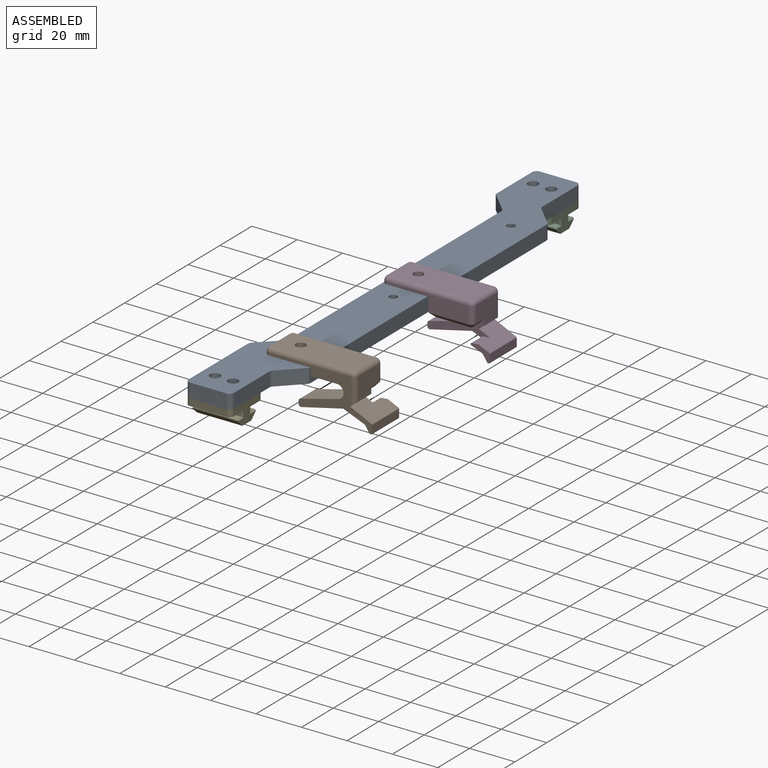
[diagram: assembled view]
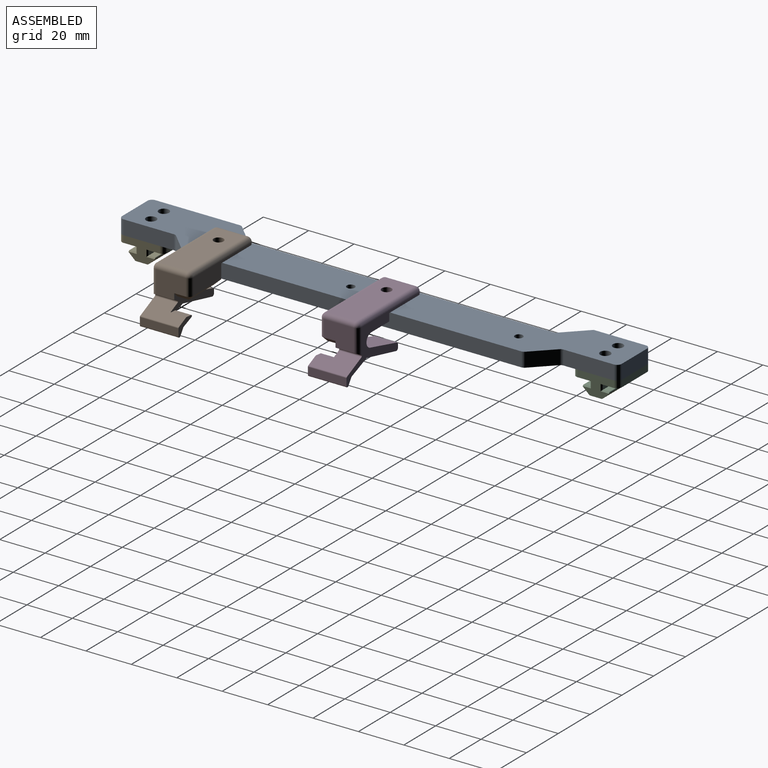
[diagram: assembled view, second angle]
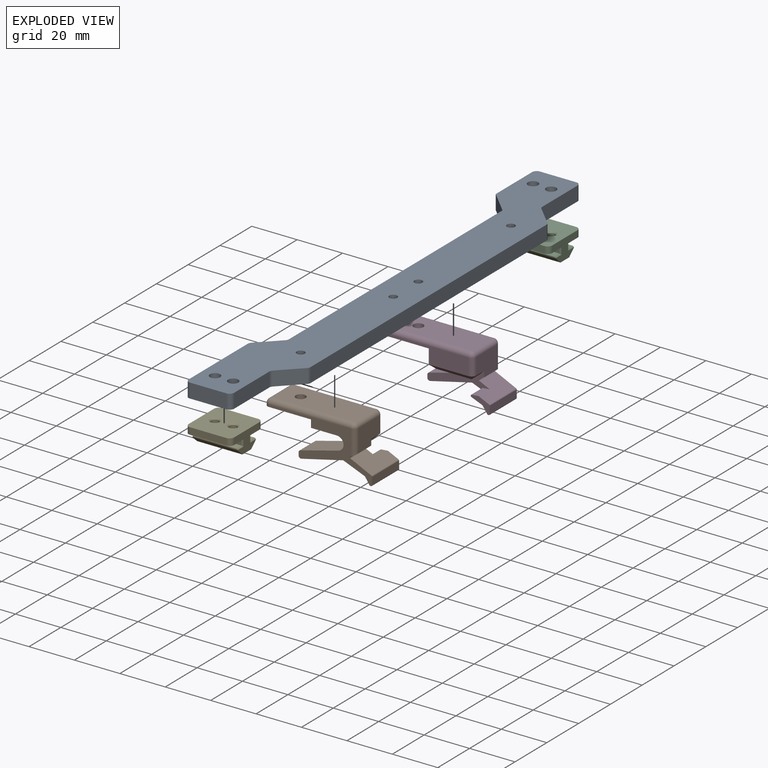
[diagram: exploded view]
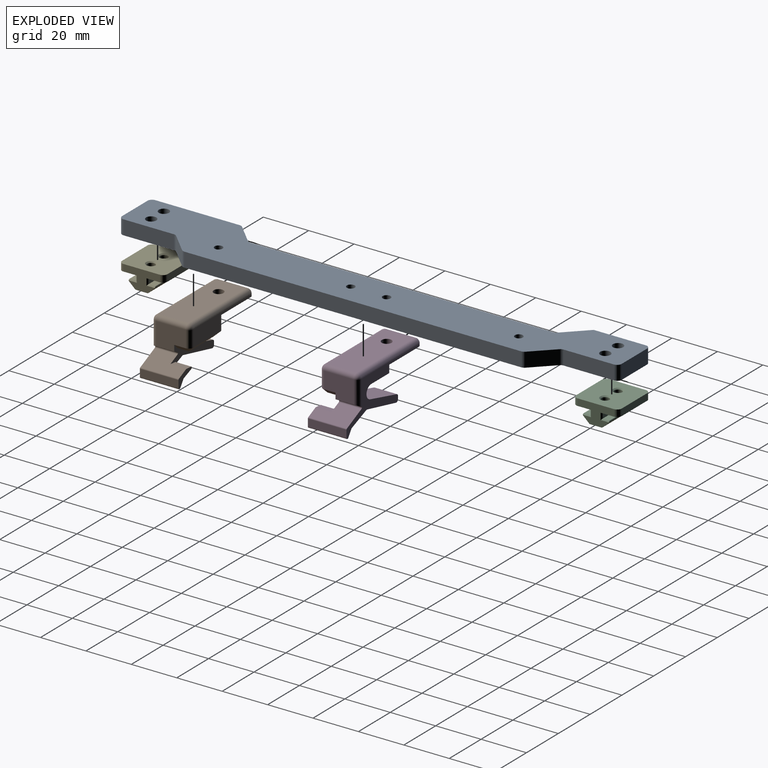
[diagram: exploded view, second angle]
ASSEMBLY  parts=5 mates=4
PART A: 32 faces, bbox 30x220x6.4 mm
  f0: plane 22.9x6.35mm, normal (-1,0,0), area 145.4mm2, adj f8,f9,f20,f31
  f1: plane 16x6.35mm, normal (0,-1,0), area 101.6mm2, adj f8,f9,f16,f17
  f2: plane 22.17x6.35mm, normal (1,0,0), area 140.8mm2, adj f8,f9,f16,f21
  f3: plane 148.34x6.35mm, normal (1,0,0), area 942mm2, adj f8,f9,f13,f14
  f4: plane 22.17x6.35mm, normal (1,0,0), area 140.8mm2, adj f8,f9,f18,f19
  f5: plane 16x6.35mm, normal (0,1,0), area 101.6mm2, adj f8,f9,f19,f20
  f6: plane 134.27x6.35mm, normal (-1,0,0), area 852.6mm2, adj f8,f9,f15,f31
  f7: plane 37.17x6.35mm, normal (-1,0,0), area 236mm2, adj f8,f9,f17,f22
  f8: plane 220x30mm, normal (0,0,1), area 4443.5mm2, adj f0,f1,f2,f3,f4,f5,f6,f7
  f9: plane 220x30mm, normal (0,0,-1), area 4443.5mm2, adj f0,f1,f2,f3,f4,f5,f6,f7
  f10: plane 8.83x8.83mm, normal (-0.71,0.71,0), area 79.3mm2, adj f8,f9,f15,f22
  f11: plane 8.83x8.83mm, normal (0.71,-0.71,0), area 79.3mm2, adj f8,f9,f13,f21
  f12: plane 8.83x8.83mm, normal (0.71,0.71,0), area 79.3mm2, adj f8,f9,f14,f18
  f13: cylinder r=2mm len=6.35mm, axis (0,0,1), area 10mm2, adj f3,f8,f9,f11
  f14: cylinder r=2mm len=6.35mm, axis (0,0,1), area 10mm2, adj f3,f8,f9,f12
  f15: cylinder r=2mm len=6.35mm, axis (0,0,1), area 10mm2, adj f6,f8,f9,f10
  f16: cylinder r=2mm len=6.35mm, axis (0,0,1), area 19.9mm2, adj f1,f2,f8,f9
  f17: cylinder r=2mm len=6.35mm, axis (0,0,-1), area 19.9mm2, adj f1,f7,f8,f9
  f18: cylinder r=2mm len=6.35mm, axis (0,0,1), area 10mm2, adj f4,f8,f9,f12
  f19: cylinder r=2mm len=6.35mm, axis (0,0,-1), area 19.9mm2, adj f4,f5,f8,f9
  f20: cylinder r=2mm len=6.35mm, axis (0,0,1), area 19.9mm2, adj f0,f5,f8,f9
  f21: cylinder r=2mm len=6.35mm, axis (0,0,-1), area 10mm2, adj f2,f8,f9,f11
  f22: cylinder r=2mm len=6.35mm, axis (0,0,1), area 10mm2, adj f7,f8,f9,f10
  f23: cylinder r=2.25mm len=6.35mm, axis (0,0,1), area 89.8mm2, adj f8,f9
  f24: cylinder r=2.25mm len=6.35mm, axis (0,0,1), area 89.8mm2, adj f8,f9
  f25: cylinder r=2.25mm len=6.35mm, axis (0,0,1), area 89.8mm2, adj f8,f9
  f26: cylinder r=2.25mm len=6.35mm, axis (0,0,1), area 89.8mm2, adj f8,f9
  f27: cylinder r=1.75mm len=6.35mm, axis (0,0,1), area 69.8mm2, adj f8,f9
  f28: cylinder r=1.75mm len=6.35mm, axis (0,0,1), area 69.8mm2, adj f8,f9
  f29: cylinder r=1.75mm len=6.35mm, axis (0,0,1), area 69.8mm2, adj f8,f9
  f30: cylinder r=1.75mm len=6.35mm, axis (0,0,1), area 69.8mm2, adj f8,f9
  f31: plane 10x10mm, normal (-0.71,-0.71,0), area 89.8mm2, adj f0,f6,f8,f9
PART B: 50 faces, bbox 47.4x17x22.5 mm
  f0: cylinder r=3mm len=10mm, axis (0,-1,0), area 37mm2, adj f1,f2,f8,f14,f49
  f1: cylinder r=3mm len=7.97mm, axis (0,1,0), area 28.5mm2, adj f0,f9,f14,f49
  f2: plane 27.5x10.44mm, normal (0,-1,0), area 96.4mm2, adj f0,f3,f4,f5,f6,f7,f8,f30
  f3: plane 15.5x5mm, normal (0,0,-1), area 77.5mm2, adj f2,f45,f46,f48,f49
  f4: plane 13x10mm, normal (-1,0,0), area 116.8mm2, adj f2,f5,f16,f20,f43,f45
  f5: plane 10x2.02mm, normal (-0.47,0,-0.88), area 21.9mm2, adj f2,f4,f14,f16,f37
  f6: plane 18.32x10mm, normal (-0.23,0,-0.97), area 188mm2, adj f2,f14,f36,f41
  f7: plane 10x1.26mm, normal (1,0,0), area 12.6mm2, adj f2,f14,f41,f42
  f8: plane 16.82x10mm, normal (0.25,0,0.97), area 173.8mm2, adj f0,f2,f14,f42
  f9: plane 11.31x5mm, normal (0,0,-1), area 56.6mm2, adj f1,f10,f14,f49
  f10: plane 17x6.35mm, normal (1,0,0), area 88.5mm2, adj f9,f11,f14,f15,f46,f49
  f11: plane 20.5x17mm, normal (0,0,-1), area 332.3mm2, adj f10,f12,f14,f15,f18,f25,f26
  f12: plane 13x1mm, normal (1,0,0), area 13mm2, adj f11,f18,f22,f25
  f13: plane 36x13mm, normal (0,0,1), area 453.5mm2, adj f19,f20,f22,f23,f26
  f14: plane 45.37x20.48mm, normal (0,1,0), area 226.8mm2, adj f0,f1,f5,f6,f7,f8,f9,f10
  f15: plane 36x7.35mm, normal (0,-1,0), area 147.1mm2, adj f10,f11,f23,f25,f43,f48
  f16: cylinder r=2mm len=11.07mm, axis (0,0,-1), area 32.6mm2, adj f4,f5,f14,f17
  f17: sphere r=2mm, area 6.3mm2, adj f16,f19,f20
  f18: cylinder r=2mm len=2mm, axis (0,0,1), area 3.1mm2, adj f11,f12,f14,f21
  f19: cylinder r=2mm len=36mm, axis (-1,0,0), area 113.1mm2, adj f13,f14,f17,f21
  f20: cylinder r=2mm len=13mm, axis (0,1,0), area 40.8mm2, adj f4,f13,f17,f44
  f21: sphere r=2mm, area 6.3mm2, adj f18,f19,f22
  f22: cylinder r=2mm len=13mm, axis (0,-1,0), area 40.8mm2, adj f12,f13,f21,f24
  f23: cylinder r=2mm len=36mm, axis (-1,0,0), area 113.1mm2, adj f13,f15,f24,f44
  f24: sphere r=2mm, area 6.3mm2, adj f22,f23,f25
  f25: cylinder r=2mm len=2mm, axis (0,0,1), area 3.1mm2, adj f11,f12,f15,f24
  f26: cylinder r=2.15mm len=4.3mm, axis (0,0,1), area 40.5mm2, adj f11,f13
  f27: plane 17x3.29mm, normal (-1,0,0), area 55.9mm2, adj f14,f32,f33,f38
  f28: plane 17x0.23mm, normal (0,0,-1), area 4mm2, adj f14,f33,f34,f38
  f29: plane 17x2.84mm, normal (0.83,0,-0.56), area 58.4mm2, adj f14,f34,f35,f38
  f30: plane 17x9.08mm, normal (-0.43,0,0.9), area 135.8mm2, adj f2,f14,f32,f37,f38,f39
  f31: plane 17x9.23mm, normal (0.37,0,-0.93), area 135.5mm2, adj f2,f14,f35,f36,f38,f40
  f32: cylinder r=0.5mm len=17mm, axis (0,1,0), area 9.6mm2, adj f14,f27,f30,f38
  f33: cylinder r=0.5mm len=17mm, axis (0,1,0), area 13.4mm2, adj f14,f27,f28,f38
  f34: cylinder r=0.5mm len=17mm, axis (0,1,0), area 8.3mm2, adj f14,f28,f29,f38
  f35: cylinder r=0.5mm len=17mm, axis (0,-1,0), area 5.1mm2, adj f14,f29,f31,f38
  f36: cylinder r=0.5mm len=10mm, axis (0,-1,0), area 3.1mm2, adj f2,f6,f14,f31
  f37: cylinder r=0.5mm len=10mm, axis (0,-1,0), area 11.1mm2, adj f2,f5,f14,f30
  f38: plane 8.39x6.39mm, normal (0,-1,0), area 21.8mm2, adj f27,f28,f29,f30,f31,f32,f33,f34
  f39: plane 7x3.07mm, normal (0.09,0,1), area 21.6mm2, adj f2,f30,f38,f40
  f40: cylinder r=0.5mm len=7mm, axis (0,1,0), area 9.4mm2, adj f2,f31,f38,f39
  f41: cylinder r=1mm len=10mm, axis (0,1,0), area 18mm2, adj f2,f6,f7,f14
  f42: cylinder r=1mm len=10mm, axis (0,1,0), area 13.2mm2, adj f2,f7,f8,f14
  f43: cylinder r=2mm len=7.35mm, axis (0,0,1), area 23.1mm2, adj f4,f15,f44,f47
  f44: sphere r=2mm, area 6.3mm2, adj f20,f23,f43
  f45: plane 5x2mm, normal (-0.71,0,-0.71), area 14.1mm2, adj f2,f3,f4,f47
  f46: plane 9x2mm, normal (0.71,0,-0.71), area 19.8mm2, adj f3,f10,f48,f49
  f47: cone r=2mm half-angle=45deg, axis (0,0,1), area 4.4mm2, adj f43,f45,f48
  f48: plane 17.5x2mm, normal (0,-0.71,-0.71), area 46.7mm2, adj f3,f15,f46,f47
  f49: plane 14.31x5mm, normal (0,0.71,-0.71), area 94.9mm2, adj f0,f1,f3,f9,f10,f46
PART C: 38 faces, bbox 20x20x8.8 mm
  f0: plane 20x7.85mm, normal (0,0,-1), area 145.5mm2, adj f1,f13,f14,f15,f24,f26,f28,f31
  f1: plane 19x2.4mm, normal (0,-1,0), area 45.6mm2, adj f0,f2,f28,f31
  f2: plane 19x2.9mm, normal (0,0,1), area 55.1mm2, adj f1,f16,f35,f36
  f3: plane 20x0.31mm, normal (0,-1,0), area 6.2mm2, adj f14,f15,f16,f17,f35,f36
  f4: plane 20x2.88mm, normal (0,-0.68,-0.73), area 78.8mm2, adj f14,f15,f17,f18
  f5: plane 20x5.34mm, normal (0,0,-1), area 87.6mm2, adj f14,f15,f18,f19,f22,f23
  f6: plane 20x2.88mm, normal (0,0.68,-0.73), area 78.8mm2, adj f14,f15,f19,f20
  f7: plane 20x0.31mm, normal (0,1,0), area 6.2mm2, adj f14,f15,f20,f21,f34,f37
  f8: plane 19x2.9mm, normal (0,0,1), area 55.1mm2, adj f9,f21,f34,f37
  f9: plane 19x2.4mm, normal (0,1,0), area 45.6mm2, adj f8,f10,f29,f30
  f10: plane 20x7.85mm, normal (0,0,-1), area 145.5mm2, adj f9,f11,f14,f15,f25,f27,f29,f30
  f11: plane 16x3mm, normal (0,1,0), area 48mm2, adj f10,f12,f25,f27
  f12: plane 20x20mm, normal (0,0,1), area 364.8mm2, adj f11,f13,f14,f15,f24,f25,f26,f27
  f13: plane 16x3mm, normal (0,-1,0), area 48mm2, adj f0,f12,f24,f26
  f14: plane 16x8.8mm, normal (1,0,0), area 85.4mm2, adj f0,f3,f4,f5,f6,f7,f10,f12
  f15: plane 16x8.8mm, normal (-1,0,0), area 85.4mm2, adj f0,f3,f4,f5,f6,f7,f10,f12
  f16: cylinder r=0.2mm len=19.4mm, axis (-1,0,0), area 6mm2, adj f2,f3,f35,f36
  f17: cylinder r=0.2mm len=20mm, axis (-1,0,0), area 3.3mm2, adj f3,f4,f14,f15
  f18: cylinder r=0.2mm len=20mm, axis (-1,0,0), area 3mm2, adj f4,f5,f14,f15
  f19: cylinder r=0.2mm len=20mm, axis (-1,0,0), area 3mm2, adj f5,f6,f14,f15
  f20: cylinder r=0.2mm len=20mm, axis (-1,0,0), area 3.3mm2, adj f6,f7,f14,f15
  f21: cylinder r=0.2mm len=19.4mm, axis (-1,0,0), area 6mm2, adj f7,f8,f34,f37
  f22: cylinder r=1.75mm len=8.3mm, axis (0,0,1), area 91.3mm2, adj f5,f33
  f23: cylinder r=1.75mm len=8.3mm, axis (0,0,1), area 91.3mm2, adj f5,f32
  f24: cylinder r=2mm len=3mm, axis (0,0,-1), area 9.4mm2, adj f0,f12,f13,f15
  f25: cylinder r=2mm len=3mm, axis (0,0,1), area 9.4mm2, adj f10,f11,f12,f15
  f26: cylinder r=2mm len=3mm, axis (0,0,1), area 9.4mm2, adj f0,f12,f13,f14
  f27: cylinder r=2mm len=3mm, axis (0,0,-1), area 9.4mm2, adj f10,f11,f12,f14
  f28: plane 2.9x0.5mm, normal (-0.71,-0.71,0), area 1.9mm2, adj f0,f1,f15,f35
  f29: plane 2.9x0.5mm, normal (-0.71,0.71,0), area 1.9mm2, adj f9,f10,f15,f34
  f30: plane 2.9x0.5mm, normal (0.71,0.71,0), area 1.9mm2, adj f9,f10,f14,f37
  f31: plane 2.9x0.5mm, normal (0.71,-0.71,0), area 1.9mm2, adj f0,f1,f14,f36
  f32: cone r=1.75mm half-angle=45deg, axis (0,0,1), area 8.9mm2, adj f12,f23
  f33: cone r=1.75mm half-angle=45deg, axis (0,0,1), area 8.9mm2, adj f12,f22
  f34: plane 3.6x0.5mm, normal (-0.71,0,0.71), area 2.4mm2, adj f7,f8,f15,f21,f29
  f35: plane 3.6x0.5mm, normal (-0.71,0,0.71), area 2.4mm2, adj f2,f3,f15,f16,f28
  f36: plane 3.6x0.5mm, normal (0.71,0,0.71), area 2.4mm2, adj f2,f3,f14,f16,f31
  f37: plane 3.6x0.5mm, normal (0.71,0,0.71), area 2.4mm2, adj f7,f8,f14,f21,f30
PART D: 50 faces, bbox 47.4x17x22.5 mm
  f0: cylinder r=3mm len=7.97mm, axis (0,-1,0), area 28.5mm2, adj f1,f9,f14,f49
  f1: cylinder r=3mm len=10mm, axis (0,1,0), area 37mm2, adj f0,f2,f8,f14,f49
  f2: plane 27.5x10.44mm, normal (0,1,0), area 96.4mm2, adj f1,f3,f4,f5,f6,f7,f8,f30
  f3: plane 15.5x5mm, normal (0,0,-1), area 77.5mm2, adj f2,f45,f46,f48,f49
  f4: plane 13x10mm, normal (-1,0,0), area 116.7mm2, adj f2,f5,f16,f20,f43,f45
  f5: plane 10x2.02mm, normal (-0.47,0,-0.88), area 21.9mm2, adj f2,f4,f14,f16,f37
  f6: plane 18.32x10mm, normal (-0.23,0,-0.97), area 188mm2, adj f2,f14,f36,f41
  f7: plane 10x1.26mm, normal (1,0,0), area 12.6mm2, adj f2,f14,f41,f42
  f8: plane 16.82x10mm, normal (0.25,0,0.97), area 173.8mm2, adj f1,f2,f14,f42
  f9: plane 11.31x5mm, normal (0,0,-1), area 56.6mm2, adj f0,f10,f14,f49
  f10: plane 17x6.35mm, normal (1,0,0), area 88.4mm2, adj f9,f11,f14,f15,f46,f49
  f11: plane 20.5x17mm, normal (0,0,-1), area 332.3mm2, adj f10,f12,f14,f15,f18,f25,f26
  f12: plane 13x1mm, normal (1,0,0), area 13mm2, adj f11,f18,f22,f25
  f13: plane 36x13mm, normal (0,0,1), area 453.5mm2, adj f19,f20,f22,f23,f26
  f14: plane 45.37x20.48mm, normal (0,-1,0), area 226.8mm2, adj f0,f1,f5,f6,f7,f8,f9,f10
  f15: plane 36x7.35mm, normal (0,1,0), area 147.1mm2, adj f10,f11,f23,f25,f43,f48
  f16: cylinder r=2mm len=11.07mm, axis (0,0,-1), area 32.6mm2, adj f4,f5,f14,f17
  f17: sphere r=2mm, area 6.3mm2, adj f16,f19,f20
  f18: cylinder r=2mm len=2mm, axis (0,0,1), area 3.1mm2, adj f11,f12,f14,f21
  f19: cylinder r=2mm len=36mm, axis (-1,0,0), area 113.1mm2, adj f13,f14,f17,f21
  f20: cylinder r=2mm len=13mm, axis (0,-1,0), area 40.8mm2, adj f4,f13,f17,f44
  f21: sphere r=2mm, area 6.3mm2, adj f18,f19,f22
  f22: cylinder r=2mm len=13mm, axis (0,1,0), area 40.8mm2, adj f12,f13,f21,f24
  f23: cylinder r=2mm len=36mm, axis (-1,0,0), area 113.1mm2, adj f13,f15,f24,f44
  f24: sphere r=2mm, area 6.3mm2, adj f22,f23,f25
  f25: cylinder r=2mm len=2mm, axis (0,0,1), area 3.1mm2, adj f11,f12,f15,f24
  f26: cylinder r=2.15mm len=4.3mm, axis (0,0,1), area 40.5mm2, adj f11,f13
  f27: plane 17x3.29mm, normal (-1,0,0), area 55.9mm2, adj f14,f32,f33,f38
  f28: plane 17x0.23mm, normal (0,0,-1), area 4mm2, adj f14,f33,f34,f38
  f29: plane 17x2.84mm, normal (0.83,0,-0.56), area 58.4mm2, adj f14,f34,f35,f38
  f30: plane 17x9.08mm, normal (-0.43,0,0.9), area 135.8mm2, adj f2,f14,f32,f37,f38,f39
  f31: plane 17x9.23mm, normal (0.37,0,-0.93), area 135.5mm2, adj f2,f14,f35,f36,f38,f40
  f32: cylinder r=0.5mm len=17mm, axis (0,-1,0), area 9.6mm2, adj f14,f27,f30,f38
  f33: cylinder r=0.5mm len=17mm, axis (0,-1,0), area 13.4mm2, adj f14,f27,f28,f38
  f34: cylinder r=0.5mm len=17mm, axis (0,-1,0), area 8.3mm2, adj f14,f28,f29,f38
  f35: cylinder r=0.5mm len=17mm, axis (0,1,0), area 5.1mm2, adj f14,f29,f31,f38
  f36: cylinder r=0.5mm len=10mm, axis (0,1,0), area 3.1mm2, adj f2,f6,f14,f31
  f37: cylinder r=0.5mm len=10mm, axis (0,1,0), area 11.1mm2, adj f2,f5,f14,f30
  f38: plane 8.39x6.39mm, normal (0,1,0), area 21.8mm2, adj f27,f28,f29,f30,f31,f32,f33,f34
  f39: plane 7x3.07mm, normal (0.09,0,1), area 21.6mm2, adj f2,f30,f38,f40
  f40: cylinder r=0.5mm len=7mm, axis (0,-1,0), area 9.4mm2, adj f2,f31,f38,f39
  f41: cylinder r=1mm len=10mm, axis (0,-1,0), area 18mm2, adj f2,f6,f7,f14
  f42: cylinder r=1mm len=10mm, axis (0,-1,0), area 13.2mm2, adj f2,f7,f8,f14
  f43: cylinder r=2mm len=7.35mm, axis (0,0,-1), area 23.1mm2, adj f4,f15,f44,f47
  f44: sphere r=2mm, area 6.3mm2, adj f20,f23,f43
  f45: plane 5x2mm, normal (-0.71,0,-0.71), area 14.1mm2, adj f2,f3,f4,f47
  f46: plane 9x2mm, normal (0.71,0,-0.71), area 19.8mm2, adj f3,f10,f48,f49
  f47: cone r=2mm half-angle=45deg, axis (0,0,1), area 4.4mm2, adj f43,f45,f48
  f48: plane 17.5x2mm, normal (0,0.71,-0.71), area 46.7mm2, adj f3,f15,f46,f47
  f49: plane 14.31x5mm, normal (0,-0.71,-0.71), area 94.9mm2, adj f0,f1,f3,f9,f10,f46
PART E: same geometry as C
PLACE A t=(3.46,-65.07,32.74)mm
PLACE B rot(axis=(0,0,-1),180deg) t=(43.46,134.93,32.74)mm
PLACE C t=(3.46,134.93,32.74)mm
PLACE D rot(axis=(0,0,1),180deg) t=(43.46,134.93,32.74)mm
PLACE E t=(3.46,-65.07,32.74)mm
MATE fastened A.f23 <-> C.f32  axis (0,0,-1) through (17.46,134.93,34.24)mm
MATE fastened A.f25 <-> E.f32  axis (0,0,-1) through (17.46,-65.07,34.24)mm
MATE fastened D.f26 <-> A.f29  axis (0,0,-1) through (23.46,42.83,40.59)mm
MATE fastened B.f26 <-> A.f30  axis (0,0,-1) through (23.46,-31.17,40.59)mm
